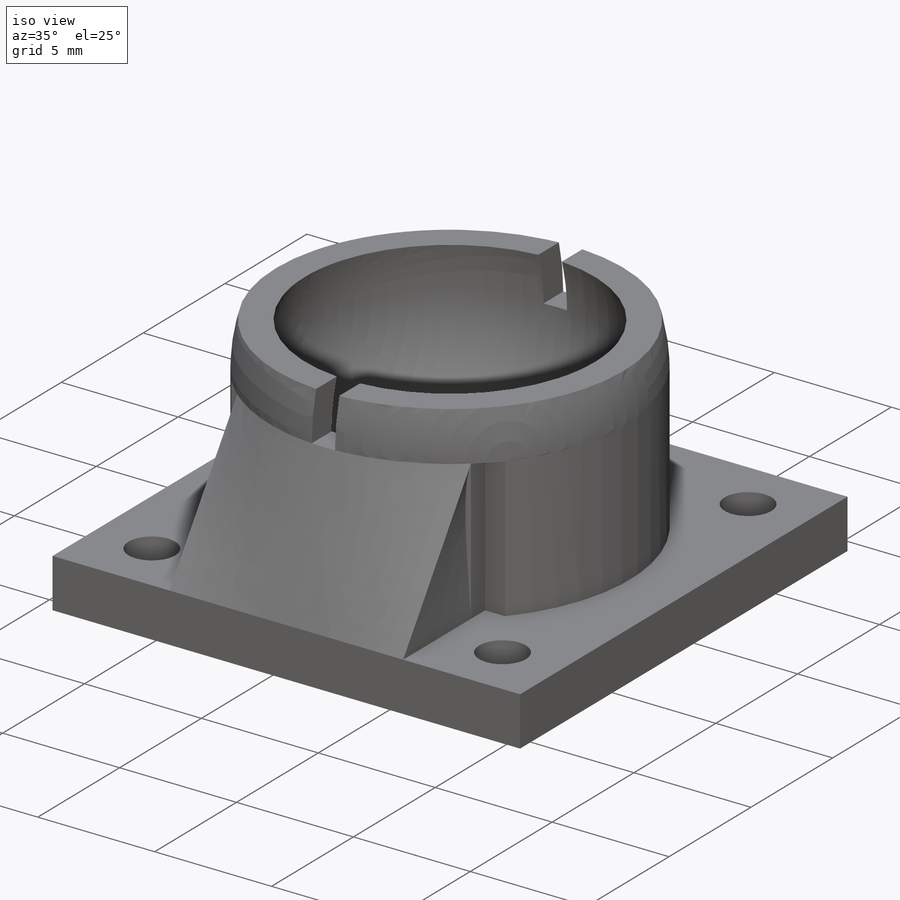
[diagram: iso view]
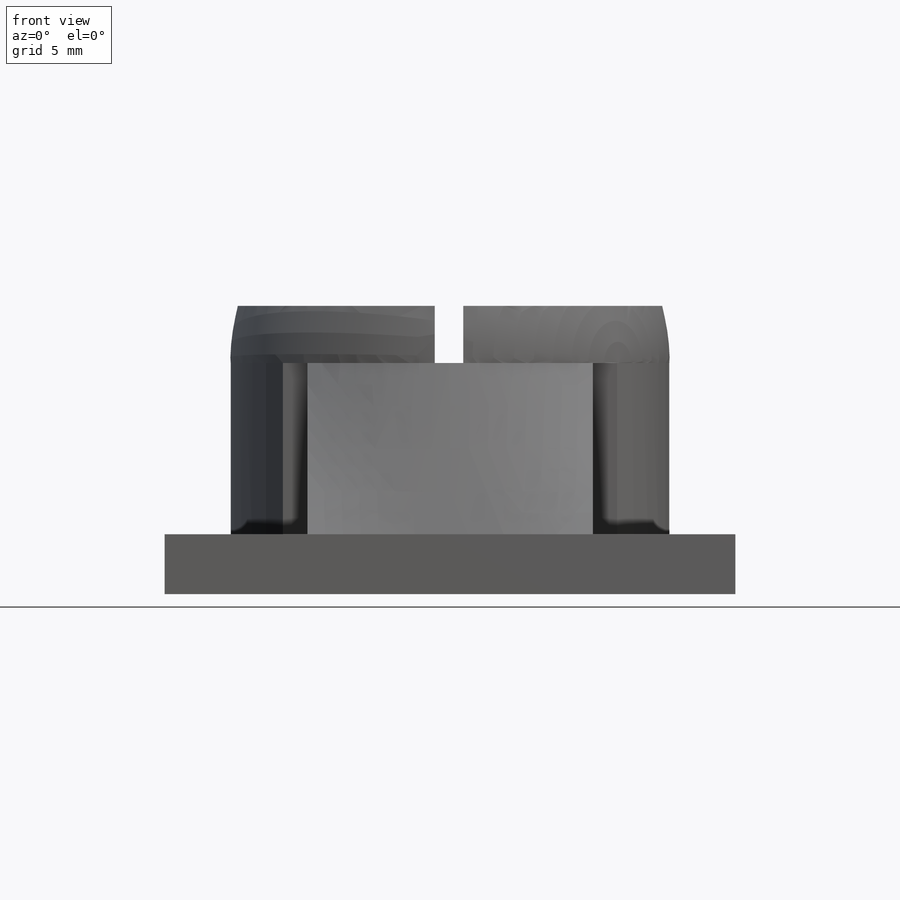
[diagram: front view]
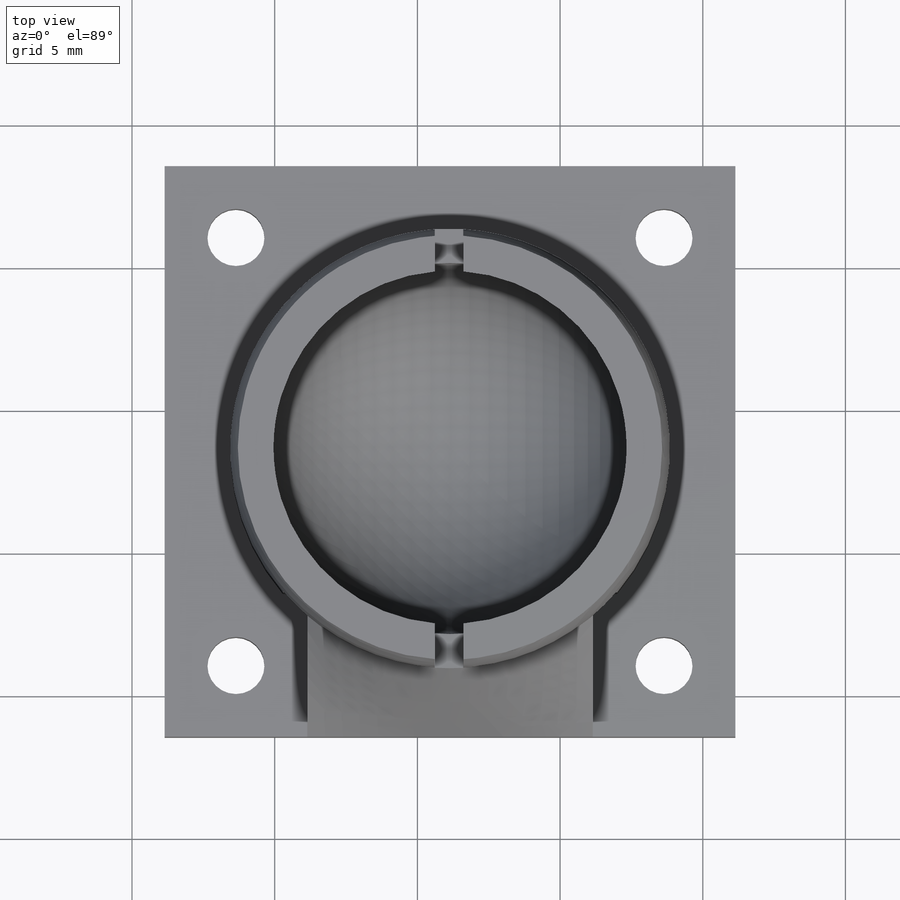
[diagram: top view]
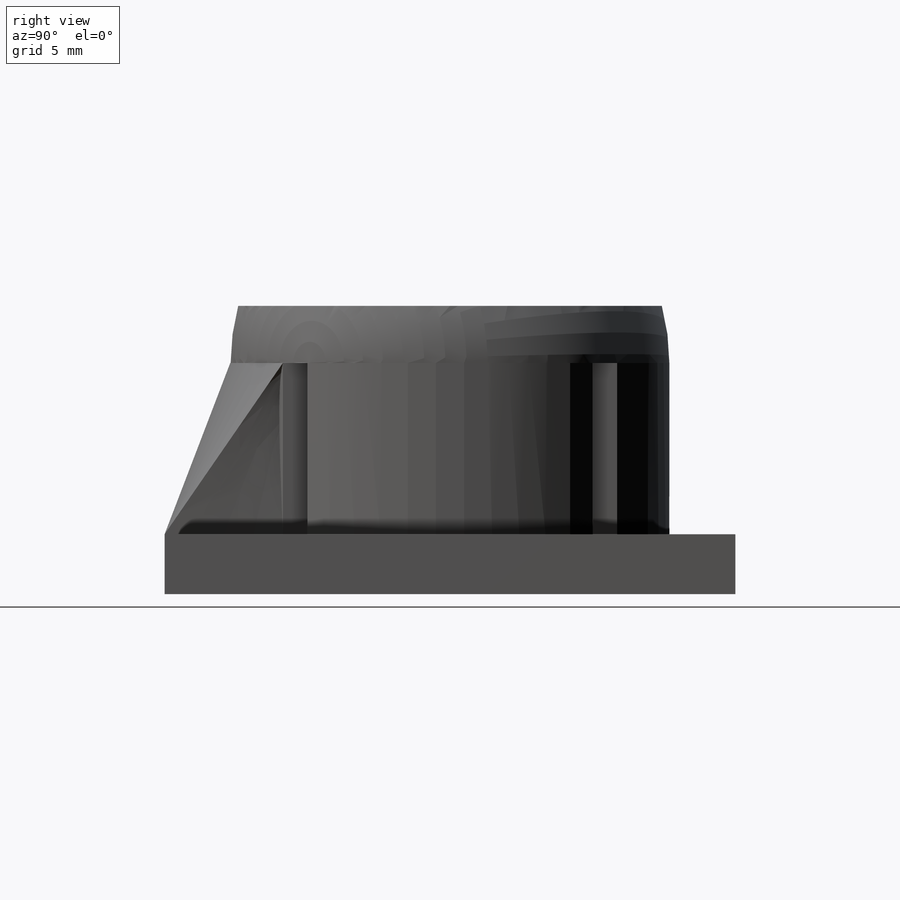
[diagram: right view]
SOLIDWORKS PART (.sldprt)
format: sldprt  version: not decoded by parser v0  size: 395,264 bytes
history: native  units: mm
features: sketch x18, cut_extrude x11, extrude x3, material x1, cut_revolve x1, revolve x1, plane x1 (+11 scaffold rows collapsed)
feature tree (47):
  scaffold x11  (default folders/planes/origin — collapsed)
  material  "Material <not specified>"
  sketch  "Sketch1"  dims[D1=20.0mm D2=20.0mm]
  extrude  "Boss-Extrude1"  Depth=10mm
  sketch  "Sketch9"
  extrude  "Boss-Extrude4"  Depth=10mm
  sketch  "Sketch10"  dims[c1.D3=0.5mm c1.D1=10.0mm c1.D2=10.0mm c2.D1=3.5mm c2.D2=20.0mm]
  cut_revolve  "Cut-Revolve1"  Angle=360deg
  sketch  "Sketch11"  dims[c1.D1=6.0mm c1.D2=7.7mm c1.D3=7.0mm c2.D1=10.0mm]
  revolve  "Revolve2"  Angle=360deg
  sketch  "Sketch12"
  extrude  "Boss-Extrude5"  Depth=2mm
  sketch  "Sketch13"
  cut_extrude  "Cut-Extrude1"  Depth=10mm
  sketch  "Sketch14"
  cut_extrude  "Cut-Extrude2"  Depth=2mm
  sketch  "Sketch27"  dims[D1=5.0mm D2=5.0mm]
  cut_extrude  "Cut-Extrude12"  Depth=6mm
  sketch  "Sketch29"  dims[D1=5.0mm D2=5.0mm]
  cut_extrude  "Cut-Extrude13"  Depth=6mm
  sketch  "Sketch31"  dims[D1=5.0mm D2=5.0mm]
  cut_extrude  "Cut-Extrude14"  Depth=6mm
  sketch  "Sketch32"  dims[D1=5.0mm D2=5.0mm]
  cut_extrude  "Cut-Extrude15"  Depth=6mm
  sketch  "Sketch36"  dims[c1.D1=~9.921393mm c2.D1=~95.065833deg]
  cut_extrude  "Cut-Extrude16"  Depth=6mm
  sketch  "Sketch38"  dims[D1=~17.503688mm]
  cut_extrude  "Cut-Extrude17"  Depth=9mm
  sketch  "Sketch40"
  cut_extrude  "Cut-Extrude18"  Depth=11.9mm
  sketch  "Sketch41"  dims[D3=~1.271642mm D1=2.5mm D2=2.5mm]
  cut_extrude  "Cut-Extrude19"  Depth=12mm
  sketch  "Sketch44"
  sketch  "Sketch47"  dims[c1.D1=~1.070946mm c2.D1=90.0deg c3.D1=1.0mm]
  cut_extrude  "Cut-Extrude20"  Depth=2mm
  plane  "Plane1"  Offset=2mm
  sketch  "Sketch48"
decode coverage: 27 of 34 modeling features carry decoded parameters
note: ~ marks probable driven/reference dimensions
note: suppression state not decoded; provenance and decode notes live in map.json
